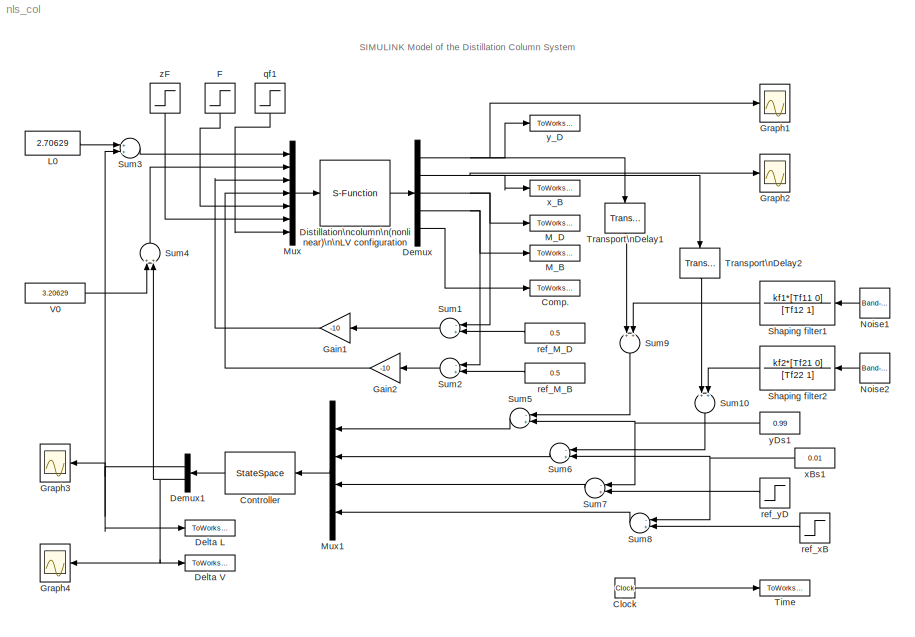
MODEL nls_col
KIND model
BLOCK [Clock] Clock
  Decimation = 10
BLOCK [ToWorkspace] Comp.
  MaxDataPoints = 20000
  SaveFormat = Array
  VariableName = Comp
BLOCK [StateSpace] Controller
  A = Ak
  B = Bk
  C = Ck
  D = Dk
BLOCK [ToWorkspace] Delta L
  MaxDataPoints = 20000
  SaveFormat = Array
  VariableName = u1
BLOCK [ToWorkspace] Delta V
  MaxDataPoints = 20000
  SaveFormat = Array
  VariableName = u2
BLOCK [Demux] Demux
  DisplayOption = bar
  Outputs = 5
  Ports = [1, 5]
BLOCK [Demux] Demux1
  DisplayOption = bar
  Outputs = 2
  Ports = [1, 2]
BLOCK [S-Function] Distillation\ncolumn\n(nonlinear)\n\nLV configuration
  FunctionName = colas
  Ports = [1, 1]
BLOCK [Step] F
  After = 1.2
  Before = 1
  SampleTime = 0
  Time = 10
BLOCK [Gain] Gain1
  Gain = -10
BLOCK [Gain] Gain2
  Gain = -10
BLOCK [Scope] Graph1
  DataFormat = Array
  MaxDataPoints = 20000
  NumInputPorts = 1
  Ports = [1]
  TickLabels = on
  TimeRange = 150
  YMax = 0.995
  YMin = 0.9895
  ZoomMode = yonly
BLOCK [Scope] Graph2
  DataFormat = Array
  MaxDataPoints = 20000
  NumInputPorts = 1
  Ports = [1]
  TickLabels = on
  TimeRange = 20
  YMax = -0.00654525
  YMin = -0.0065495
  ZoomMode = yonly
BLOCK [Scope] Graph3
  DataFormat = Array
  MaxDataPoints = 20000
  NumInputPorts = 1
  Ports = [1]
  SaveName = ScopeData2
  TickLabels = on
  TimeRange = 150
  YMax = 1
  YMin = 0.985
  ZoomMode = xonly
BLOCK [Scope] Graph4
  DataFormat = Array
  MaxDataPoints = 20000
  NumInputPorts = 1
  Ports = [1]
  SaveName = ScopeData1
  TickLabels = on
  TimeRange = 150
  YMax = 1
  YMin = 0.985
BLOCK [Constant] L0
  Value = 2.70629
BLOCK [ToWorkspace] M_B
  MaxDataPoints = 20000
  SaveFormat = Array
  VariableName = y4
BLOCK [ToWorkspace] M_D
  MaxDataPoints = 20000
  SaveFormat = Array
  VariableName = y3
BLOCK [Mux] Mux
  DisplayOption = bar
  Inputs = 7
  Ports = [7, 1]
BLOCK [Mux] Mux1
  DisplayOption = bar
  Ports = [4, 1]
BLOCK [Reference] Noise1  REF=simulink/Sources/Band-Limited\nWhite Noise
  Cov = 5*10^(-3)
  Ports = [0, 1]
  ShowPortLabels = on
  SourceBlock = simulink/Sources/Band-Limited\nWhite Noise
  SourceType = Band-Limited White Noise.
  Ts = 1
  VectorParams1D = on
  seed = [23341]
BLOCK [Reference] Noise2  REF=simulink/Sources/Band-Limited\nWhite Noise
  Cov = 5*10^(-3)
  Ports = [0, 1]
  ShowPortLabels = on
  SourceBlock = simulink/Sources/Band-Limited\nWhite Noise
  SourceType = Band-Limited White Noise.
  Ts = 1
  VectorParams1D = on
  seed = [23341]
BLOCK [TransferFcn] Shaping filter1
  Denominator = [Tf12 1]
  Numerator = kf1*[Tf11 0]
BLOCK [TransferFcn] Shaping filter2
  Denominator = [Tf22 1]
  Numerator = kf2*[Tf21 0]
BLOCK [Sum] Sum1
  Inputs = -+
  Ports = [2, 1]
BLOCK [Sum] Sum10
  Ports = [2, 1]
BLOCK [Sum] Sum2
  Inputs = -+
  Ports = [2, 1]
BLOCK [Sum] Sum3
  Ports = [2, 1]
BLOCK [Sum] Sum4
  Ports = [2, 1]
BLOCK [Sum] Sum5
  Inputs = -+
  Ports = [2, 1]
BLOCK [Sum] Sum6
  Inputs = -+
  Ports = [2, 1]
BLOCK [Sum] Sum7
  Inputs = -+
  Ports = [2, 1]
BLOCK [Sum] Sum8
  Inputs = -+
  Ports = [2, 1]
BLOCK [Sum] Sum9
  Ports = [2, 1]
BLOCK [ToWorkspace] Time
  MaxDataPoints = 20000
  SaveFormat = Array
  VariableName = t
BLOCK [TransportDelay] Transport\nDelay1
  InitialInput = 0.99
BLOCK [TransportDelay] Transport\nDelay2
  InitialInput = 0.01
BLOCK [Constant] V0
  Value = 3.20629
BLOCK [Step] qf1
  SampleTime = 0
  Time = 0
BLOCK [Constant] ref_M_B
  Value = 0.5
BLOCK [Constant] ref_M_D
  Value = 0.5
BLOCK [Step] ref_xB
  After = 0.01
  SampleTime = 0
  Time = 0
BLOCK [Step] ref_yD
  After = 0.995
  Before = 0.99
  SampleTime = 0
  Time = 200
BLOCK [Constant] xBs1
  Value = 0.01
BLOCK [ToWorkspace] x_B
  MaxDataPoints = 20000
  SaveFormat = Array
  VariableName = y2
BLOCK [Constant] yDs1
  Value = 0.99
BLOCK [ToWorkspace] y_D
  MaxDataPoints = 20000
  SaveFormat = Array
  VariableName = y1
BLOCK [Step] zF
  After = 0.6
  Before = 0.5
  SampleTime = 0
  Time = 100
ANNOTATION (root): SIMULINK Model of the Distillation Column System
LINE Clock:1 -> Time:1
LINE Controller:1 -> Demux1:1
NET Demux1:1 -> Delta L:1, Graph3:1, Sum3:2
NET Demux1:2 -> Delta V:1, Graph4:1, Sum4:2
NET Demux:1 -> Graph1:1, Transport\nDelay1:1, y_D:1
NET Demux:2 -> Graph2:1, Transport\nDelay2:1, x_B:1
NET Demux:3 -> M_D:1, Sum1:1
NET Demux:4 -> M_B:1, Sum2:1
LINE Demux:5 -> Comp.:1
LINE Distillation\ncolumn\n(nonlinear)\n\nLV configuration:1 -> Demux:1
LINE F:1 -> Mux:5
LINE Gain1:1 -> Mux:3
LINE Gain2:1 -> Mux:4
LINE L0:1 -> Sum3:1
LINE Mux1:1 -> Controller:1
LINE Mux:1 -> Distillation\ncolumn\n(nonlinear)\n\nLV configuration:1
LINE Noise1:1 -> Shaping filter1:1
LINE Noise2:1 -> Shaping filter2:1
LINE Shaping filter1:1 -> Sum9:2
LINE Shaping filter2:1 -> Sum10:2
LINE Sum10:1 -> Sum6:1
LINE Sum1:1 -> Gain1:1
LINE Sum2:1 -> Gain2:1
LINE Sum3:1 -> Mux:1
LINE Sum4:1 -> Mux:2
LINE Sum5:1 -> Mux1:1
LINE Sum6:1 -> Mux1:2
LINE Sum7:1 -> Mux1:3
LINE Sum8:1 -> Mux1:4
LINE Sum9:1 -> Sum5:1
LINE Transport\nDelay1:1 -> Sum9:1
LINE Transport\nDelay2:1 -> Sum10:1
LINE V0:1 -> Sum4:1
LINE qf1:1 -> Mux:7
LINE ref_M_B:1 -> Sum2:2
LINE ref_M_D:1 -> Sum1:2
LINE ref_xB:1 -> Sum8:2
LINE ref_yD:1 -> Sum7:2
NET xBs1:1 -> Sum6:2, Sum8:1
NET yDs1:1 -> Sum5:2, Sum7:1
LINE zF:1 -> Mux:6
note: NET lines group one-source signal fan-out (src -> all destinations, sorted); 1:1 wires keep LINE
